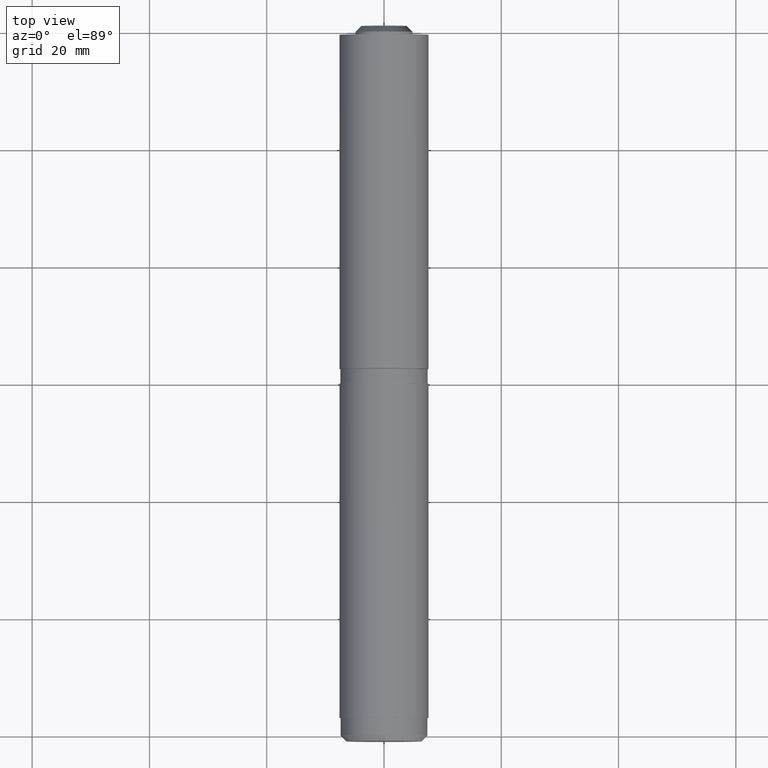
[diagram: clean part render]
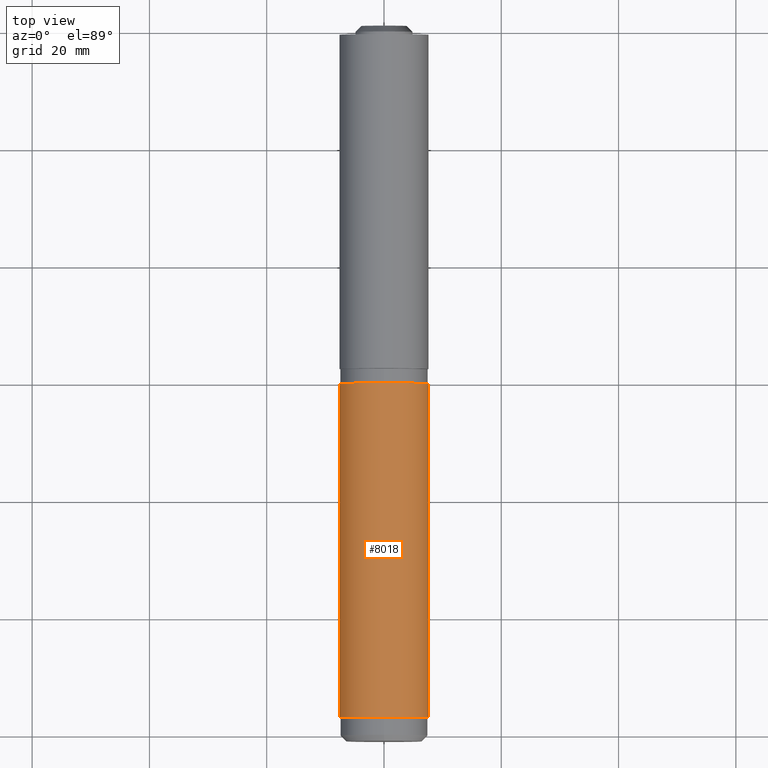
[diagram: same view with one face highlighted and labeled with its STEP entity id]
A machine part, top view. The second image highlights one B-rep face of the part: STEP entity #8018.
In plain terms, the highlighted cylindrical surface (partial cylindrical patch) has radius 7.65 mm, axis along (-0, -1, -0).
Its self-contained STEP definition (entity closure, byte-faithful):
#440 = LINE ( 'NONE', #10872, #1466 ) ;
#1145 = ORIENTED_EDGE ( 'NONE', *, *, #9835, .F. ) ;
#1346 = CARTESIAN_POINT ( 'NONE',  ( -3.606994818652846657, -28.49999999999999645, -6.746264772317456249 ) ) ;
#1397 = DIRECTION ( 'NONE',  ( 0.000000000000000000, 1.000000000000000000, 0.000000000000000000 ) ) ;
#1445 = DIRECTION ( 'NONE',  ( 0.000000000000000000, 0.000000000000000000, 1.000000000000000000 ) ) ;
#1466 = VECTOR ( 'NONE', #2221, 1000.000000000000000 ) ;
#2221 = DIRECTION ( 'NONE',  ( -0.000000000000000000, -1.000000000000000000, -0.000000000000000000 ) ) ;
#2337 = EDGE_CURVE ( 'NONE', #9312, #12762, #440, .T. ) ;
#2790 = VERTEX_POINT ( 'NONE', #11664 ) ;
#3176 = AXIS2_PLACEMENT_3D ( 'NONE', #12371, #1397, #1445 ) ;
#3946 = DIRECTION ( 'NONE',  ( -0.000000000000000000, -1.000000000000000000, -0.000000000000000000 ) ) ;
#4124 = CARTESIAN_POINT ( 'NONE',  ( 3.606994818652849766, 28.50000000000000000, -6.746264772317456249 ) ) ;
#4439 = CARTESIAN_POINT ( 'NONE',  ( -3.606994818652846657, 28.50000000000000000, -6.746264772317456249 ) ) ;
#4490 = FACE_OUTER_BOUND ( 'NONE', #7641, .T. ) ;
#4905 = EDGE_CURVE ( 'NONE', #2790, #13404, #6720, .T. ) ;
#5732 = ORIENTED_EDGE ( 'NONE', *, *, #7930, .T. ) ;
#6000 = CIRCLE ( 'NONE', #3176, 7.649999999999999467 ) ;
#6328 = DIRECTION ( 'NONE',  ( 0.000000000000000000, 0.000000000000000000, 1.000000000000000000 ) ) ;
#6420 = CARTESIAN_POINT ( 'NONE',  ( 0.000000000000000000, 28.50000000000000000, 0.000000000000000000 ) ) ;
#6720 = LINE ( 'NONE', #4124, #10950 ) ;
#7183 = CARTESIAN_POINT ( 'NONE',  ( 3.606994818652849766, -28.49999999999999645, -6.746264772317456249 ) ) ;
#7641 = EDGE_LOOP ( 'NONE', ( #5732, #9396, #1145, #7682 ) ) ;
#7682 = ORIENTED_EDGE ( 'NONE', *, *, #2337, .T. ) ;
#7930 = EDGE_CURVE ( 'NONE', #12762, #13404, #6000, .T. ) ;
#8018 = ADVANCED_FACE ( 'NONE', ( #4490 ), #9569, .T. ) ;
#8575 = DIRECTION ( 'NONE',  ( -0.000000000000000000, -1.000000000000000000, -0.000000000000000000 ) ) ;
#9312 = VERTEX_POINT ( 'NONE', #4439 ) ;
#9396 = ORIENTED_EDGE ( 'NONE', *, *, #4905, .F. ) ;
#9569 = CYLINDRICAL_SURFACE ( 'NONE', #12025, 7.649999999999999467 ) ;
#9606 = DIRECTION ( 'NONE',  ( 0.000000000000000000, 1.000000000000000000, 0.000000000000000000 ) ) ;
#9835 = EDGE_CURVE ( 'NONE', #9312, #2790, #10046, .T. ) ;
#10046 = CIRCLE ( 'NONE', #12103, 7.649999999999999467 ) ;
#10238 = DIRECTION ( 'NONE',  ( 0.000000000000000000, 0.000000000000000000, -1.000000000000000000 ) ) ;
#10425 = CARTESIAN_POINT ( 'NONE',  ( 0.000000000000000000, 28.50000000000000000, 0.000000000000000000 ) ) ;
#10872 = CARTESIAN_POINT ( 'NONE',  ( -3.606994818652846657, 28.50000000000000000, -6.746264772317456249 ) ) ;
#10950 = VECTOR ( 'NONE', #8575, 1000.000000000000000 ) ;
#11664 = CARTESIAN_POINT ( 'NONE',  ( 3.606994818652849766, 28.50000000000000000, -6.746264772317456249 ) ) ;
#12025 = AXIS2_PLACEMENT_3D ( 'NONE', #10425, #3946, #10238 ) ;
#12103 = AXIS2_PLACEMENT_3D ( 'NONE', #6420, #9606, #6328 ) ;
#12371 = CARTESIAN_POINT ( 'NONE',  ( 0.000000000000000000, -28.49999999999999645, 0.000000000000000000 ) ) ;
#12762 = VERTEX_POINT ( 'NONE', #1346 ) ;
#13404 = VERTEX_POINT ( 'NONE', #7183 ) ;